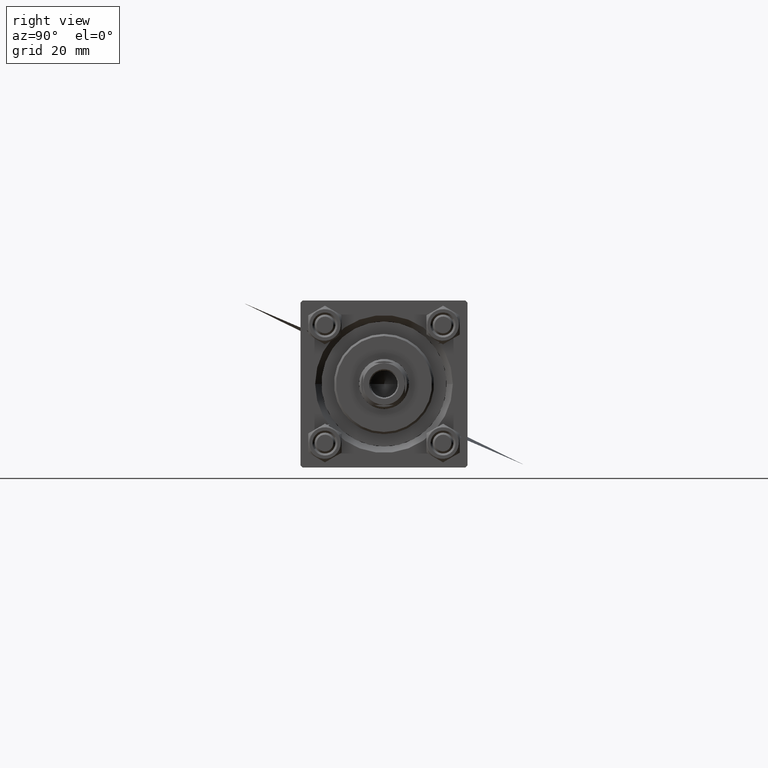
[diagram: clean part render]
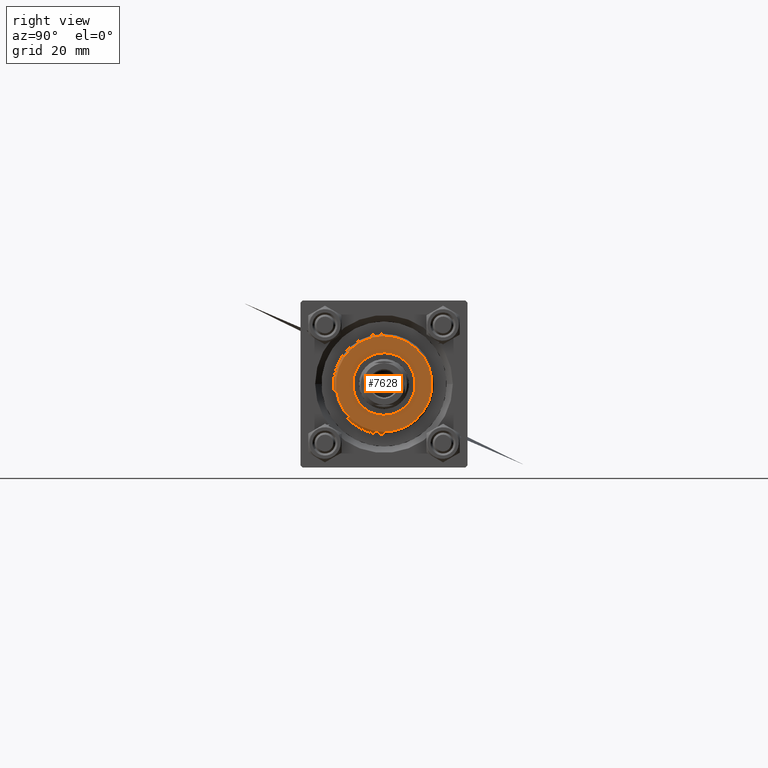
[diagram: same view with one face highlighted and labeled with its STEP entity id]
A machine part, right view. The second image highlights one B-rep face of the part: STEP entity #7628.
In plain terms, the highlighted planar face has unit normal (1, 0, 0).
Its self-contained STEP definition (entity closure, byte-faithful):
#1174 = DIRECTION ( 'NONE',  ( 1.000000000000000000, 0.000000000000000000, -0.000000000000000000 ) ) ;
#2176 = ORIENTED_EDGE ( 'NONE', *, *, #30893, .F. ) ;
#4140 = EDGE_LOOP ( 'NONE', ( #2176, #12865 ) ) ;
#5317 = CARTESIAN_POINT ( 'NONE',  ( 0.000000000000000000, 0.000000000000000000, 35.70000000000000284 ) ) ;
#6456 = CARTESIAN_POINT ( 'NONE',  ( 7.500000000000000888, 0.000000000000000000, 35.70000000000000284 ) ) ;
#7628 = ADVANCED_FACE ( 'NONE', ( #18606, #8375 ), #32821, .T. ) ;
#7680 = EDGE_CURVE ( 'NONE', #42680, #13145, #12536, .T. ) ;
#8375 = FACE_OUTER_BOUND ( 'NONE', #25391, .T. ) ;
#10430 = CIRCLE ( 'NONE', #17091, 7.500000000000000888 ) ;
#11835 = DIRECTION ( 'NONE',  ( 1.000000000000000000, 0.000000000000000000, 0.000000000000000000 ) ) ;
#12536 = CIRCLE ( 'NONE', #35598, 11.49999999999999645 ) ;
#12750 = DIRECTION ( 'NONE',  ( 0.000000000000000000, 0.000000000000000000, 1.000000000000000000 ) ) ;
#12865 = ORIENTED_EDGE ( 'NONE', *, *, #23960, .F. ) ;
#13145 = VERTEX_POINT ( 'NONE', #18068 ) ;
#15522 = VERTEX_POINT ( 'NONE', #31881 ) ;
#15834 = ORIENTED_EDGE ( 'NONE', *, *, #7680, .T. ) ;
#17091 = AXIS2_PLACEMENT_3D ( 'NONE', #33141, #42919, #18234 ) ;
#17224 = AXIS2_PLACEMENT_3D ( 'NONE', #5317, #12750, #11835 ) ;
#18068 = CARTESIAN_POINT ( 'NONE',  ( -11.49999999999999645, 0.000000000000000000, 35.70000000000000284 ) ) ;
#18234 = DIRECTION ( 'NONE',  ( 1.000000000000000000, 0.000000000000000000, 0.000000000000000000 ) ) ;
#18606 = FACE_BOUND ( 'NONE', #4140, .T. ) ;
#22441 = CIRCLE ( 'NONE', #17224, 11.49999999999999645 ) ;
#22837 = CIRCLE ( 'NONE', #39922, 7.500000000000000888 ) ;
#23960 = EDGE_CURVE ( 'NONE', #15522, #37688, #22837, .T. ) ;
#25078 = ORIENTED_EDGE ( 'NONE', *, *, #35846, .T. ) ;
#25391 = EDGE_LOOP ( 'NONE', ( #25078, #15834 ) ) ;
#28070 = CARTESIAN_POINT ( 'NONE',  ( 0.000000000000000000, 0.000000000000000000, 35.70000000000000284 ) ) ;
#30893 = EDGE_CURVE ( 'NONE', #37688, #15522, #10430, .T. ) ;
#30921 = DIRECTION ( 'NONE',  ( 1.000000000000000000, 0.000000000000000000, 0.000000000000000000 ) ) ;
#31881 = CARTESIAN_POINT ( 'NONE',  ( -7.500000000000000888, 9.184850993605149917E-16, 35.70000000000000284 ) ) ;
#32821 = PLANE ( 'NONE',  #38553 ) ;
#33041 = DIRECTION ( 'NONE',  ( 0.000000000000000000, 0.000000000000000000, 1.000000000000000000 ) ) ;
#33141 = CARTESIAN_POINT ( 'NONE',  ( 0.000000000000000000, 0.000000000000000000, 35.70000000000000284 ) ) ;
#34426 = CARTESIAN_POINT ( 'NONE',  ( 0.000000000000000000, 0.000000000000000000, 35.70000000000000284 ) ) ;
#35598 = AXIS2_PLACEMENT_3D ( 'NONE', #34426, #44874, #30921 ) ;
#35759 = CARTESIAN_POINT ( 'NONE',  ( 11.49999999999999645, 1.438959988998139963E-15, 35.70000000000000284 ) ) ;
#35846 = EDGE_CURVE ( 'NONE', #13145, #42680, #22441, .T. ) ;
#37688 = VERTEX_POINT ( 'NONE', #6456 ) ;
#38090 = DIRECTION ( 'NONE',  ( 0.000000000000000000, 0.000000000000000000, 1.000000000000000000 ) ) ;
#38308 = DIRECTION ( 'NONE',  ( 1.000000000000000000, 0.000000000000000000, 0.000000000000000000 ) ) ;
#38553 = AXIS2_PLACEMENT_3D ( 'NONE', #39571, #33041, #1174 ) ;
#39571 = CARTESIAN_POINT ( 'NONE',  ( 0.000000000000000000, 0.000000000000000000, 35.70000000000000284 ) ) ;
#39922 = AXIS2_PLACEMENT_3D ( 'NONE', #28070, #38090, #38308 ) ;
#42680 = VERTEX_POINT ( 'NONE', #35759 ) ;
#42919 = DIRECTION ( 'NONE',  ( 0.000000000000000000, 0.000000000000000000, 1.000000000000000000 ) ) ;
#44874 = DIRECTION ( 'NONE',  ( 0.000000000000000000, 0.000000000000000000, 1.000000000000000000 ) ) ;